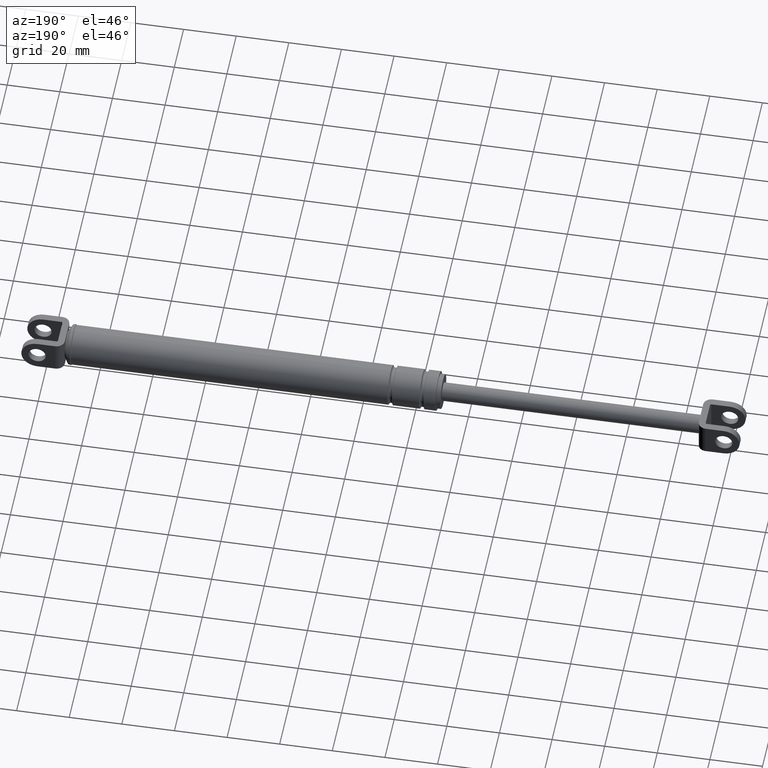
[diagram: clean part render]
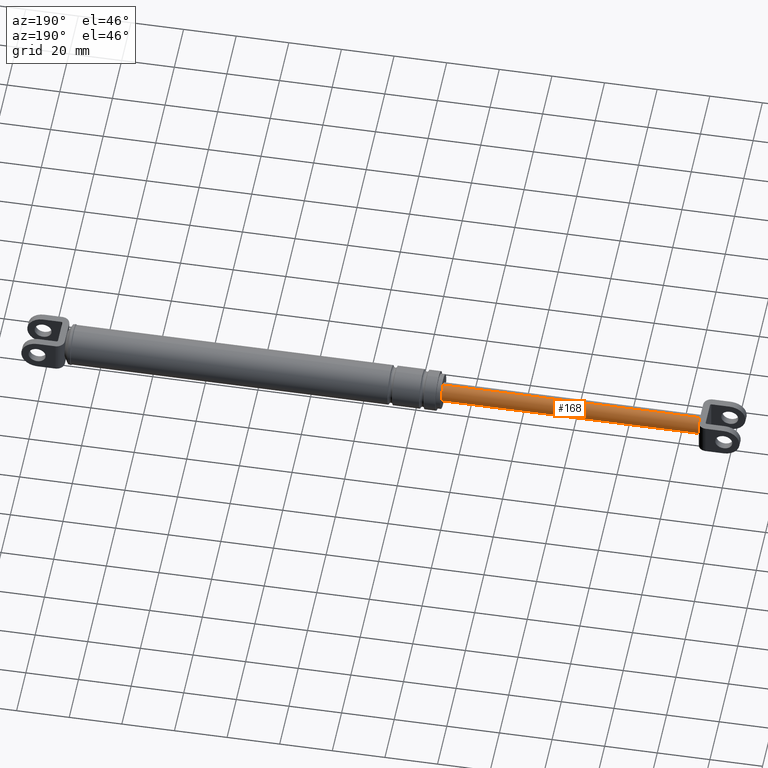
[diagram: same view with one face highlighted and labeled with its STEP entity id]
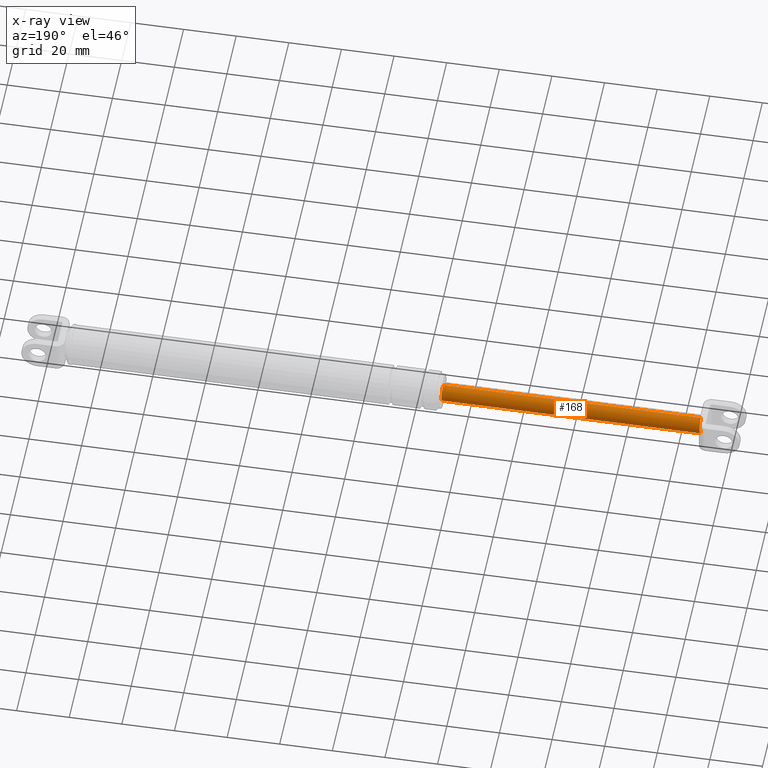
[diagram: x-ray of the same camera — body ghosted, the highlighted face saturated]
A machine part, auxiliary view. The second image highlights one B-rep face of the part: STEP entity #168.
The next image is the same camera in x-ray: the body ghosted, the highlighted face saturated — about 0% of this face is hidden behind the body in this view.
In plain terms, the highlighted cylindrical surface (edge-blend (fillet) strip) has radius 3.5 mm, axis along (1, 0, 0).
Its self-contained STEP definition (entity closure, byte-faithful):
#168=ADVANCED_FACE('',(#745),#744,.T.);
#744=CYLINDRICAL_SURFACE('',#1217,3.50000000000E+000);
#745=FACE_OUTER_BOUND('',#1218,.T.);
#1214=CARTESIAN_POINT('',(0.00000000000E+000,0.00000000000E+000,1.88774157740E+002));
#1215=DIRECTION('',(1.00000000000E+000,-0.00000000000E+000,-0.00000000000E+000));
#1216=DIRECTION('',(-0.00000000000E+000,-0.00000000000E+000,-1.00000000000E+000));
#1217=AXIS2_PLACEMENT_3D('',#1214,#1215,#1216);
#1218=EDGE_LOOP('',(#1520,#1521,#1522,#1523));
#1520=ORIENTED_EDGE('',*,*,#1687,.T.);
#1521=ORIENTED_EDGE('',*,*,#1688,.F.);
#1522=ORIENTED_EDGE('',*,*,#1684,.F.);
#1523=ORIENTED_EDGE('',*,*,#1689,.T.);
#1684=EDGE_CURVE('',#2624,#2625,#2626,.T.);
#1687=EDGE_CURVE('',#2639,#2638,#2646,.T.);
#1688=EDGE_CURVE('',#2625,#2638,#2652,.T.);
#1689=EDGE_CURVE('',#2624,#2639,#2658,.T.);
#2624=VERTEX_POINT('',#3254);
#2625=VERTEX_POINT('',#3255);
#2626=CIRCLE('',#3259,3.50000000000E+000);
#2638=VERTEX_POINT('',#3264);
#2639=VERTEX_POINT('',#3265);
#2646=CIRCLE('',#3273,3.50000000000E+000);
#2652=(BOUNDED_CURVE() B_SPLINE_CURVE(1,(#3274,#3275),.UNSPECIFIED.,.F.,.F.) B_SPLINE_CURVE_WITH_KNOTS((2,2),(8.33333332085E-002,9.16666666563E-001),.UNSPECIFIED.) CURVE() GEOMETRIC_REPRESENTATION_ITEM() RATIONAL_B_SPLINE_CURVE((1.00000000000E+000,1.00000000000E+000)) REPRESENTATION_ITEM('') );
#2658=(BOUNDED_CURVE() B_SPLINE_CURVE(1,(#3276,#3277),.UNSPECIFIED.,.F.,.F.) B_SPLINE_CURVE_WITH_KNOTS((2,2),(8.33333333333E-002,9.16666666667E-001),.UNSPECIFIED.) CURVE() GEOMETRIC_REPRESENTATION_ITEM() RATIONAL_B_SPLINE_CURVE((7.50000000000E-001,7.50000000000E-001)) REPRESENTATION_ITEM('') );
#3254=CARTESIAN_POINT('',(5.15770304968E+001,0.00000000000E+000,1.92274157740E+002));
#3255=CARTESIAN_POINT('',(5.15770304968E+001,1.48029736617E-016,1.85274157740E+002));
#3256=CARTESIAN_POINT('',(5.15770304968E+001,0.00000000000E+000,1.88774157740E+002));
#3257=DIRECTION('',(-1.00000000000E+000,0.00000000000E+000,0.00000000000E+000));
#3258=DIRECTION('',(0.00000000000E+000,-1.22460635382E-016,1.00000000000E+000));
#3259=AXIS2_PLACEMENT_3D('',#3256,#3257,#3258);
#3264=CARTESIAN_POINT('',(1.49577030497E+002,1.48029736617E-016,1.85274157740E+002));
#3265=CARTESIAN_POINT('',(1.49577030497E+002,0.00000000000E+000,1.92274157740E+002));
#3270=CARTESIAN_POINT('',(1.49577030497E+002,0.00000000000E+000,1.88774157740E+002));
#3271=DIRECTION('',(-1.00000000000E+000,0.00000000000E+000,0.00000000000E+000));
#3272=DIRECTION('',(0.00000000000E+000,-1.22460635382E-016,1.00000000000E+000));
#3273=AXIS2_PLACEMENT_3D('',#3270,#3271,#3272);
#3274=CARTESIAN_POINT('',(5.15770304822E+001,0.00000000000E+000,1.85274157740E+002));
#3275=CARTESIAN_POINT('',(1.49577030485E+002,0.00000000000E+000,1.85274157740E+002));
#3276=CARTESIAN_POINT('',(5.15770304968E+001,0.00000000000E+000,1.92274157740E+002));
#3277=CARTESIAN_POINT('',(1.49577030497E+002,0.00000000000E+000,1.92274157740E+002));